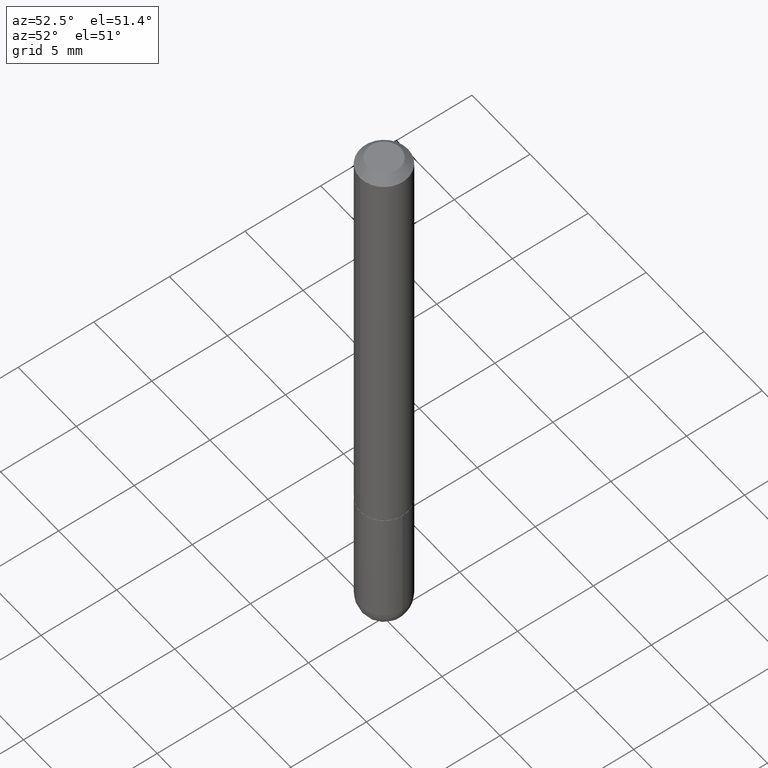
[diagram: clean part render]
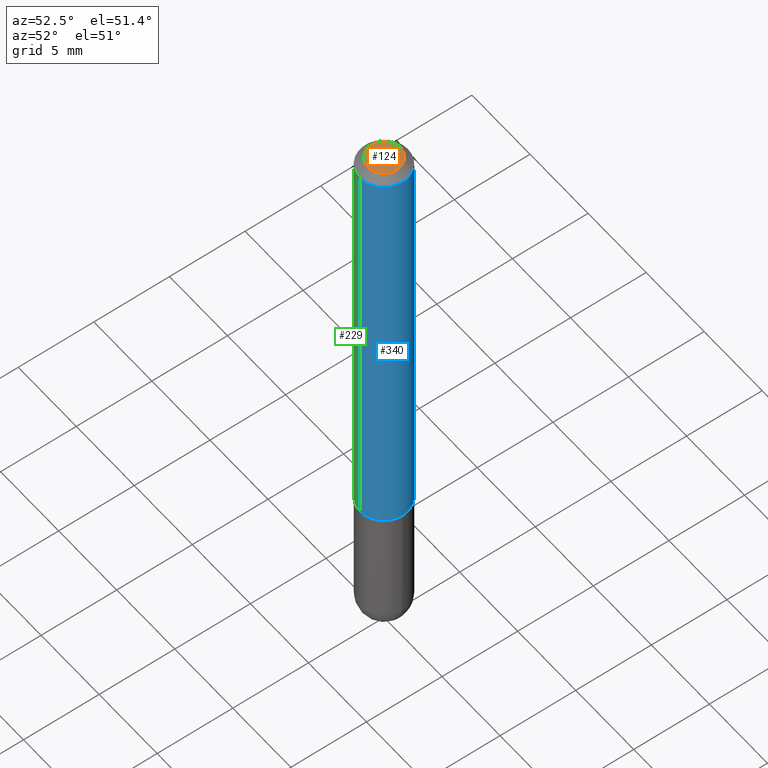
[diagram: same view with three faces highlighted in distinct colors, each labeled with its STEP entity id]
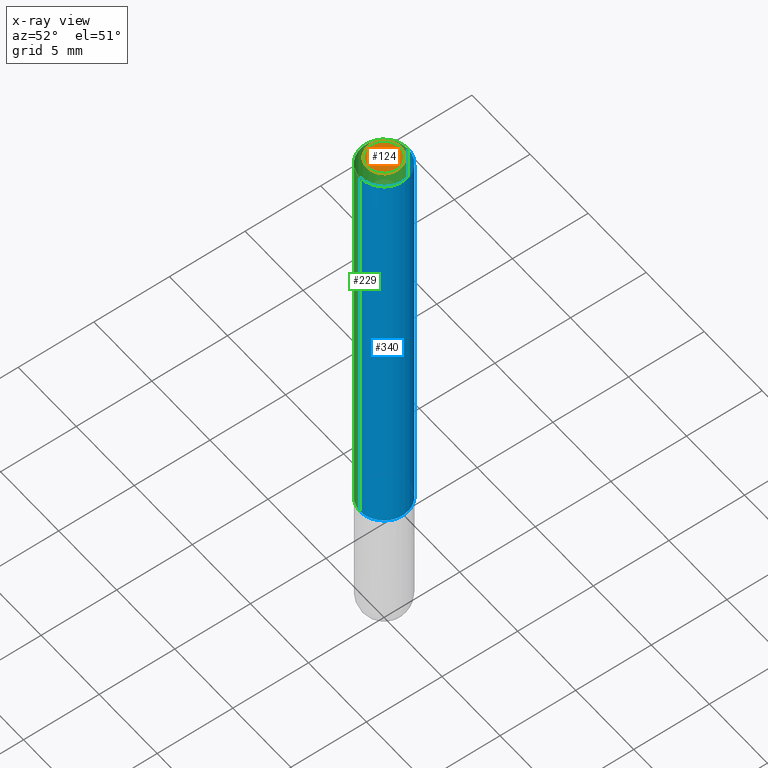
[diagram: x-ray of the same camera — body ghosted, the three highlighted faces saturated]
A machine part, auxiliary view with three faces highlighted in distinct colors.
The next image is the same camera in x-ray (body ghosted, the three faces saturated) — at least one of them is partly hidden behind the body in this view.
Their STEP definitions:

[orange] entity #124 — the highlighted planar face has unit normal (0, -0, -1).
#18 = VERTEX_POINT ( 'NONE', #123 ) ;
#26 = CARTESIAN_POINT ( 'NONE',  ( -6.137781423452536231E-45, 8.908536764955164801E-31, 2.530651102576191747E-16 ) ) ;
#36 = CIRCLE ( 'NONE', #390, 0.04249999999999968386 ) ;
#48 = DIRECTION ( 'NONE',  ( 2.425376385233152912E-29, -3.520254829235966793E-15, -1.000000000000000000 ) ) ;
#71 = CARTESIAN_POINT ( 'NONE',  ( -6.137781423452536231E-45, 8.908536764955164801E-31, 2.530651102576191747E-16 ) ) ;
#80 = DIRECTION ( 'NONE',  ( 6.982962677686265922E-15, 1.000000000000000000, -3.520254829235966793E-15 ) ) ;
#112 = CARTESIAN_POINT ( 'NONE',  ( 2.967759138016640869E-16, 0.04249999999999968386, -2.307827511371789537E-17 ) ) ;
#122 = CIRCLE ( 'NONE', #143, 0.04249999999999968386 ) ;
#123 = CARTESIAN_POINT ( 'NONE',  ( 3.666055405785279275E-16, 0.04249999999999968386, 1.034542800150916889E-16 ) ) ;
#124 = ADVANCED_FACE ( 'NONE', ( #387 ), #141, .F. ) ;
#141 = PLANE ( 'NONE',  #304 ) ;
#143 = AXIS2_PLACEMENT_3D ( 'NONE', #26, #166, #291 ) ;
#166 = DIRECTION ( 'NONE',  ( -2.425376385233152632E-29, 3.520254829235967188E-15, 1.000000000000000000 ) ) ;
#191 = VERTEX_POINT ( 'NONE', #302 ) ;
#199 = DIRECTION ( 'NONE',  ( -2.425376385233152632E-29, 3.520254829235967188E-15, 1.000000000000000000 ) ) ;
#245 = ORIENTED_EDGE ( 'NONE', *, *, #376, .T. ) ;
#273 = ORIENTED_EDGE ( 'NONE', *, *, #317, .T. ) ;
#291 = DIRECTION ( 'NONE',  ( -6.982962677686265922E-15, -1.000000000000000000, 3.520254829235967188E-15 ) ) ;
#302 = CARTESIAN_POINT ( 'NONE',  ( -3.601761448830038135E-16, -0.04249999999999968386, 4.026759405001466481E-16 ) ) ;
#304 = AXIS2_PLACEMENT_3D ( 'NONE', #112, #48, #80 ) ;
#311 = EDGE_LOOP ( 'NONE', ( #273, #245 ) ) ;
#317 = EDGE_CURVE ( 'NONE', #18, #191, #36, .T. ) ;
#321 = DIRECTION ( 'NONE',  ( -6.982962677686265922E-15, -1.000000000000000000, 3.520254829235967188E-15 ) ) ;
#376 = EDGE_CURVE ( 'NONE', #191, #18, #122, .T. ) ;
#387 = FACE_OUTER_BOUND ( 'NONE', #311, .T. ) ;
#390 = AXIS2_PLACEMENT_3D ( 'NONE', #71, #199, #321 ) ;

[blue] entity #340 — the highlighted cylindrical surface (edge-blend (fillet) strip) has radius 1.5875 mm, axis along (-0, 0, 1).
#3 = ORIENTED_EDGE ( 'NONE', *, *, #260, .T. ) ;
#6 = EDGE_LOOP ( 'NONE', ( #204, #3, #399, #188 ) ) ;
#34 = CARTESIAN_POINT ( 'NONE',  ( -4.287811248607198352E-16, -0.06250000000000001388, -0.01999999999999984776 ) ) ;
#50 = EDGE_CURVE ( 'NONE', #212, #352, #342, .T. ) ;
#52 = FACE_OUTER_BOUND ( 'NONE', #6, .T. ) ;
#75 = DIRECTION ( 'NONE',  ( -2.425376385233152632E-29, 3.520254829235967188E-15, 1.000000000000000000 ) ) ;
#87 = CARTESIAN_POINT ( 'NONE',  ( 2.726123057002063865E-29, -3.956766428061227255E-15, -1.124000000000000110 ) ) ;
#91 = CYLINDRICAL_SURFACE ( 'NONE', #374, 0.06250000000000002776 ) ;
#105 = CARTESIAN_POINT ( 'NONE',  ( 4.850752770466322394E-31, -7.040509658471958830E-17, -0.02000000000000006981 ) ) ;
#115 = CARTESIAN_POINT ( 'NONE',  ( 4.440892098500628134E-16, 0.06250000000000002776, -2.200159268272480725E-16 ) ) ;
#119 = EDGE_CURVE ( 'NONE', #212, #283, #120, .T. ) ;
#120 = LINE ( 'NONE', #241, #180 ) ;
#127 = VECTOR ( 'NONE', #388, 39.37007874015748143 ) ;
#131 = EDGE_CURVE ( 'NONE', #283, #163, #325, .T. ) ;
#157 = DIRECTION ( 'NONE',  ( -2.425376385233152632E-29, 3.520254829235967188E-15, 1.000000000000000000 ) ) ;
#163 = VERTEX_POINT ( 'NONE', #177 ) ;
#174 = DIRECTION ( 'NONE',  ( -6.982962677686265922E-15, -1.000000000000000000, 3.551402391763545142E-15 ) ) ;
#177 = CARTESIAN_POINT ( 'NONE',  ( 4.364351673553917187E-16, 0.06249999999999988204, -0.02000000000000029185 ) ) ;
#180 = VECTOR ( 'NONE', #359, 39.37007874015748143 ) ;
#187 = CARTESIAN_POINT ( 'NONE',  ( 0.000000000000000000, 0.000000000000000000, 0.000000000000000000 ) ) ;
#188 = ORIENTED_EDGE ( 'NONE', *, *, #119, .F. ) ;
#204 = ORIENTED_EDGE ( 'NONE', *, *, #50, .T. ) ;
#212 = VERTEX_POINT ( 'NONE', #296 ) ;
#221 = DIRECTION ( 'NONE',  ( -6.982962677686266711E-15, -1.000000000000000000, 3.520254829235967582E-15 ) ) ;
#241 = CARTESIAN_POINT ( 'NONE',  ( -4.364351673553918666E-16, -0.06250000000000002776, 2.200159268272480725E-16 ) ) ;
#249 = CARTESIAN_POINT ( 'NONE',  ( 4.440892098500770129E-16, 0.06249999999999616279, -1.124000000000000332 ) ) ;
#253 = DIRECTION ( 'NONE',  ( -6.982962677686265133E-15, -1.000000000000000000, 4.370956789862812472E-15 ) ) ;
#260 = EDGE_CURVE ( 'NONE', #352, #163, #396, .T. ) ;
#283 = VERTEX_POINT ( 'NONE', #34 ) ;
#293 = AXIS2_PLACEMENT_3D ( 'NONE', #87, #157, #253 ) ;
#296 = CARTESIAN_POINT ( 'NONE',  ( -4.364351673553652426E-16, -0.06250000000000406619, -1.123999999999999888 ) ) ;
#319 = AXIS2_PLACEMENT_3D ( 'NONE', #105, #75, #174 ) ;
#325 = CIRCLE ( 'NONE', #319, 0.06249999999999995143 ) ;
#340 = ADVANCED_FACE ( 'NONE', ( #52 ), #91, .T. ) ;
#342 = CIRCLE ( 'NONE', #293, 0.06250000000000012490 ) ;
#352 = VERTEX_POINT ( 'NONE', #249 ) ;
#359 = DIRECTION ( 'NONE',  ( -2.425376385233152351E-29, 3.520254829235966793E-15, 1.000000000000000000 ) ) ;
#374 = AXIS2_PLACEMENT_3D ( 'NONE', #187, #405, #221 ) ;
#388 = DIRECTION ( 'NONE',  ( -2.425376385233152351E-29, 3.520254829235966793E-15, 1.000000000000000000 ) ) ;
#396 = LINE ( 'NONE', #115, #127 ) ;
#399 = ORIENTED_EDGE ( 'NONE', *, *, #131, .F. ) ;
#405 = DIRECTION ( 'NONE',  ( -2.425376385233152632E-29, 3.520254829235967188E-15, 1.000000000000000000 ) ) ;

[green] entity #229 — the highlighted cylindrical surface (edge-blend (fillet) strip) has radius 1.5875 mm, axis along (-0, 0, 1).
#33 = ORIENTED_EDGE ( 'NONE', *, *, #260, .F. ) ;
#34 = CARTESIAN_POINT ( 'NONE',  ( -4.287811248607198352E-16, -0.06250000000000001388, -0.01999999999999984776 ) ) ;
#73 = EDGE_LOOP ( 'NONE', ( #33, #278, #370, #378 ) ) ;
#77 = DIRECTION ( 'NONE',  ( -2.425376385233152632E-29, 3.520254829235967188E-15, 1.000000000000000000 ) ) ;
#113 = DIRECTION ( 'NONE',  ( -6.982962677686265922E-15, -1.000000000000000000, 3.551402391763545142E-15 ) ) ;
#115 = CARTESIAN_POINT ( 'NONE',  ( 4.440892098500628134E-16, 0.06250000000000002776, -2.200159268272480725E-16 ) ) ;
#119 = EDGE_CURVE ( 'NONE', #212, #283, #120, .T. ) ;
#120 = LINE ( 'NONE', #241, #180 ) ;
#127 = VECTOR ( 'NONE', #388, 39.37007874015748143 ) ;
#130 = CARTESIAN_POINT ( 'NONE',  ( 0.000000000000000000, 0.000000000000000000, 0.000000000000000000 ) ) ;
#145 = AXIS2_PLACEMENT_3D ( 'NONE', #362, #77, #182 ) ;
#149 = FACE_OUTER_BOUND ( 'NONE', #73, .T. ) ;
#163 = VERTEX_POINT ( 'NONE', #177 ) ;
#169 = DIRECTION ( 'NONE',  ( -2.425376385233152632E-29, 3.520254829235967188E-15, 1.000000000000000000 ) ) ;
#177 = CARTESIAN_POINT ( 'NONE',  ( 4.364351673553917187E-16, 0.06249999999999988204, -0.02000000000000029185 ) ) ;
#180 = VECTOR ( 'NONE', #359, 39.37007874015748143 ) ;
#182 = DIRECTION ( 'NONE',  ( -6.982962677686265133E-15, -1.000000000000000000, 4.370956789862812472E-15 ) ) ;
#192 = EDGE_CURVE ( 'NONE', #352, #212, #301, .T. ) ;
#212 = VERTEX_POINT ( 'NONE', #296 ) ;
#218 = AXIS2_PLACEMENT_3D ( 'NONE', #393, #298, #113 ) ;
#227 = DIRECTION ( 'NONE',  ( -6.982962677686266711E-15, -1.000000000000000000, 3.520254829235967582E-15 ) ) ;
#229 = ADVANCED_FACE ( 'NONE', ( #149 ), #276, .T. ) ;
#241 = CARTESIAN_POINT ( 'NONE',  ( -4.364351673553918666E-16, -0.06250000000000002776, 2.200159268272480725E-16 ) ) ;
#249 = CARTESIAN_POINT ( 'NONE',  ( 4.440892098500770129E-16, 0.06249999999999616279, -1.124000000000000332 ) ) ;
#260 = EDGE_CURVE ( 'NONE', #352, #163, #396, .T. ) ;
#276 = CYLINDRICAL_SURFACE ( 'NONE', #292, 0.06250000000000002776 ) ;
#278 = ORIENTED_EDGE ( 'NONE', *, *, #192, .T. ) ;
#280 = EDGE_CURVE ( 'NONE', #163, #283, #285, .T. ) ;
#283 = VERTEX_POINT ( 'NONE', #34 ) ;
#285 = CIRCLE ( 'NONE', #218, 0.06249999999999995143 ) ;
#292 = AXIS2_PLACEMENT_3D ( 'NONE', #130, #169, #227 ) ;
#296 = CARTESIAN_POINT ( 'NONE',  ( -4.364351673553652426E-16, -0.06250000000000406619, -1.123999999999999888 ) ) ;
#298 = DIRECTION ( 'NONE',  ( -2.425376385233152632E-29, 3.520254829235967188E-15, 1.000000000000000000 ) ) ;
#301 = CIRCLE ( 'NONE', #145, 0.06250000000000012490 ) ;
#352 = VERTEX_POINT ( 'NONE', #249 ) ;
#359 = DIRECTION ( 'NONE',  ( -2.425376385233152351E-29, 3.520254829235966793E-15, 1.000000000000000000 ) ) ;
#362 = CARTESIAN_POINT ( 'NONE',  ( 2.726123057002063865E-29, -3.956766428061227255E-15, -1.124000000000000110 ) ) ;
#370 = ORIENTED_EDGE ( 'NONE', *, *, #119, .T. ) ;
#378 = ORIENTED_EDGE ( 'NONE', *, *, #280, .F. ) ;
#388 = DIRECTION ( 'NONE',  ( -2.425376385233152351E-29, 3.520254829235966793E-15, 1.000000000000000000 ) ) ;
#393 = CARTESIAN_POINT ( 'NONE',  ( 4.850752770466322394E-31, -7.040509658471958830E-17, -0.02000000000000006981 ) ) ;
#396 = LINE ( 'NONE', #115, #127 ) ;